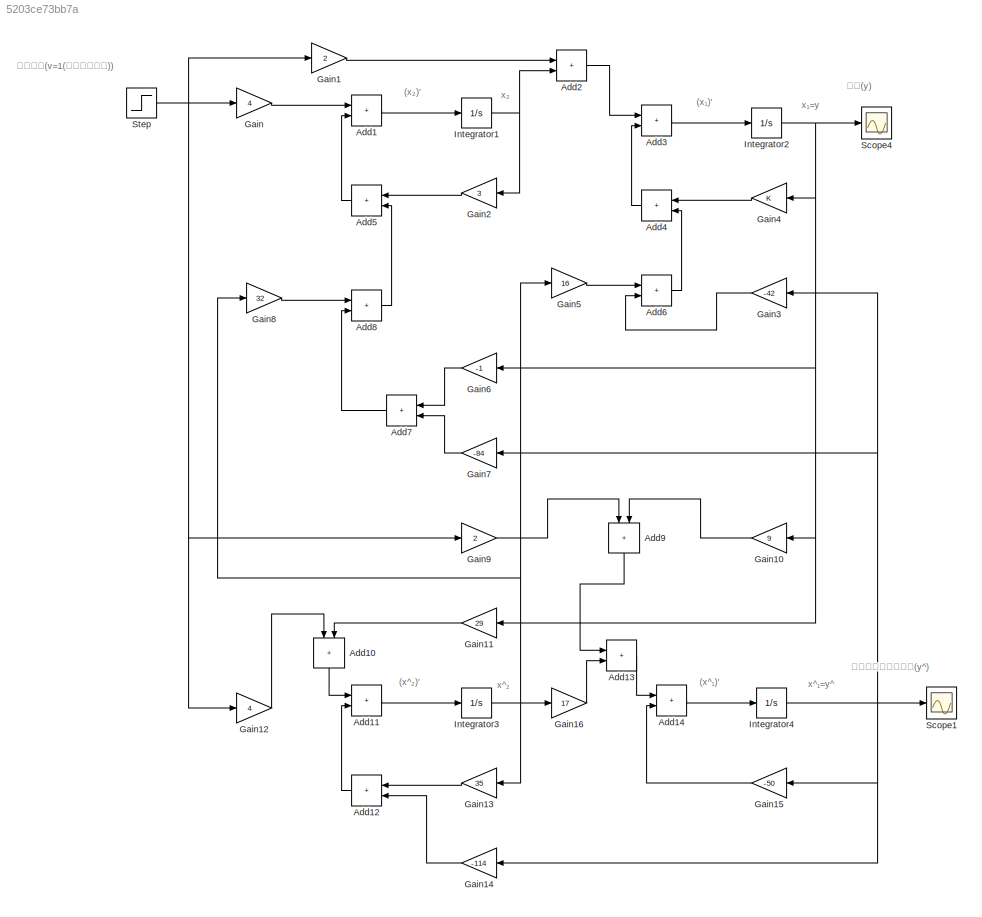
MODEL slx_5203ce73bb7a
KIND model
CONFIG AbsTol = auto
CONFIG EnableMultiTasking = off
CONFIG FixedStep = 1e-3
CONFIG MaxStep = auto
CONFIG MinStep = auto
CONFIG RelTol = 1e-3
CONFIG SampleTimeConstraint = Unconstrained
CONFIG SolverName = FixedStepAuto
CONFIG StartTime = 0.0
CONFIG StopTime = 10.0
BLOCK [Sum] Add1
  IconShape = rectangular
  Ports = [2, 1]
BLOCK [Sum] Add10
  IconShape = rectangular
  NameLocation = left
  Ports = [2, 1]
BLOCK [Sum] Add11
  IconShape = rectangular
  Ports = [2, 1]
BLOCK [Sum] Add12
  IconShape = rectangular
  Ports = [2, 1]
BLOCK [Sum] Add13
  IconShape = rectangular
  Ports = [2, 1]
BLOCK [Sum] Add14
  IconShape = rectangular
  Ports = [2, 1]
BLOCK [Sum] Add2
  IconShape = rectangular
  Ports = [2, 1]
BLOCK [Sum] Add3
  IconShape = rectangular
  Ports = [2, 1]
BLOCK [Sum] Add4
  IconShape = rectangular
  Ports = [2, 1]
BLOCK [Sum] Add5
  IconShape = rectangular
  Ports = [2, 1]
BLOCK [Sum] Add6
  IconShape = rectangular
  Ports = [2, 1]
BLOCK [Sum] Add7
  IconShape = rectangular
  Ports = [2, 1]
BLOCK [Sum] Add8
  IconShape = rectangular
  Ports = [2, 1]
BLOCK [Sum] Add9
  IconShape = rectangular
  NameLocation = left
  Ports = [2, 1]
BLOCK [Gain] Gain
  Gain = 4
BLOCK [Gain] Gain1
  Gain = 2
BLOCK [Gain] Gain10
  Gain = 9
BLOCK [Gain] Gain11
  Gain = 29
BLOCK [Gain] Gain12
  Gain = 4
BLOCK [Gain] Gain13
  Gain = 35
BLOCK [Gain] Gain14
  Gain = -114
BLOCK [Gain] Gain15
  Gain = -50
BLOCK [Gain] Gain16
  Gain = 17
BLOCK [Gain] Gain2
  Gain = 3
BLOCK [Gain] Gain3
  Gain = -42
BLOCK [Gain] Gain4
BLOCK [Gain] Gain5
  Gain = 16
BLOCK [Gain] Gain6
  Gain = -1
BLOCK [Gain] Gain7
  Gain = -84
BLOCK [Gain] Gain8
  Gain = 32
BLOCK [Gain] Gain9
  Gain = 2
BLOCK [Integrator] Integrator1
  Ports = [1, 1]
BLOCK [Integrator] Integrator2
  Ports = [1, 1]
BLOCK [Integrator] Integrator3
  Ports = [1, 1]
BLOCK [Integrator] Integrator4
  Ports = [1, 1]
BLOCK [Scope] Scope1
  Floating = off
  NumInputPorts = 1
  Ports = [1]
  ScopeSpecificationString = Simulink.scopes.TimeScopeBlockCfg('CurrentConfiguration', extmgr.ConfigurationSet(extmgr.Configuration('Core','General UI',true),extmgr.Configuration('Core','Source UI',true),extmgr.Configuration('Sources','WiredSimulink',true,'DataLoggingVariableName','ScopeData1'),extmgr.Configuration('Visuals','Time Domain',true,'SerializedDisplays',{struct('MinYLimReal','-0.5','MaxYLimReal','0.5','YLabelReal',...<+1538ch>
BLOCK [Scope] Scope4
  Floating = off
  NumInputPorts = 1
  Ports = [1]
  ScopeSpecificationString = Simulink.scopes.TimeScopeBlockCfg('CurrentConfiguration', extmgr.ConfigurationSet(extmgr.Configuration('Core','General UI',true),extmgr.Configuration('Core','Source UI',true),extmgr.Configuration('Sources','WiredSimulink',true),extmgr.Configuration('Visuals','Time Domain',true,'SerializedDisplays',{struct('MinYLimReal','-100','MaxYLimReal','100','YLabelReal','x₁-x₁(ハット)','MinYLimMag','0.00000','Ma...<+1441ch>
BLOCK [Step] Step
  Before = 1
  SampleTime = 0
  Time = 10
ANNOTATION (root): (x^₁)'
ANNOTATION (root): (x^₂)'
ANNOTATION (root): (x₁)'
ANNOTATION (root): (x₂)'
ANNOTATION (root): x^₁=y^
ANNOTATION (root): x^₂
ANNOTATION (root): x₁=y
ANNOTATION (root): x₂
ANNOTATION (root): オブザーバの推定値(y^)
ANNOTATION (root): 出力(y)
ANNOTATION (root): 制御入力(v=1(単位ステップ))
LINE Add10:1 -> Add11:1
LINE Add11:1 -> Integrator3:1
LINE Add12:1 -> Add11:2
LINE Add13:1 -> Add14:1
LINE Add14:1 -> Integrator4:1
LINE Add1:1 -> Integrator1:1
LINE Add2:1 -> Add3:1
LINE Add3:1 -> Integrator2:1
LINE Add4:1 -> Add3:2
LINE Add5:1 -> Add1:2
LINE Add6:1 -> Add4:2
LINE Add7:1 -> Add8:2
LINE Add8:1 -> Add5:2
LINE Add9:1 -> Add13:1
LINE Gain10:1 -> Add9:2
LINE Gain11:1 -> Add10:2
LINE Gain12:1 -> Add10:1
LINE Gain13:1 -> Add12:1
LINE Gain14:1 -> Add12:2
LINE Gain15:1 -> Add14:2
LINE Gain16:1 -> Add13:2
LINE Gain1:1 -> Add2:1
LINE Gain2:1 -> Add5:1
LINE Gain3:1 -> Add6:2
LINE Gain4:1 -> Add4:1
LINE Gain5:1 -> Add6:1
LINE Gain6:1 -> Add7:1
LINE Gain7:1 -> Add7:2
LINE Gain8:1 -> Add8:1
LINE Gain9:1 -> Add9:1
LINE Gain:1 -> Add1:1
NET Integrator1:1 -> Add2:2, Gain2:1
NET Integrator2:1 -> Gain10:1, Gain11:1, Gain4:1, Gain6:1, Scope4:1
NET Integrator3:1 -> Gain13:1, Gain16:1, Gain5:1, Gain8:1
NET Integrator4:1 -> Gain14:1, Gain15:1, Gain3:1, Gain7:1, Scope1:1
NET Step:1 -> Gain12:1, Gain1:1, Gain9:1, Gain:1
note: NET lines group one-source signal fan-out (src -> all destinations, sorted); 1:1 wires keep LINE
